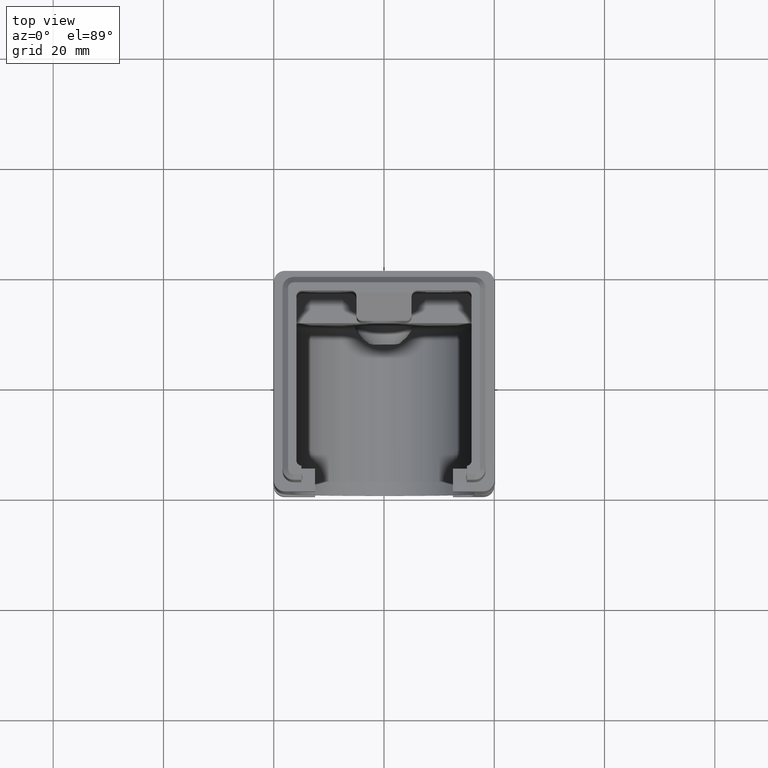
[diagram: clean part render]
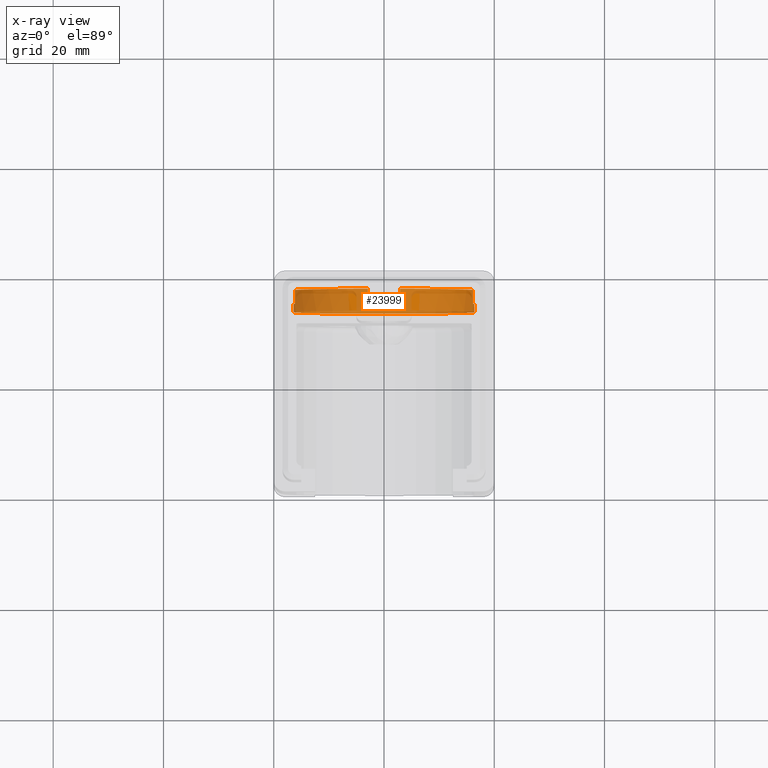
[diagram: x-ray — body ghosted, one internal face saturated and labeled with its STEP entity id]
A machine part, top view, then the same camera in x-ray: the body is ghosted and one INTERNAL B-rep face — a face not visible from any outside direction — is saturated and labeled: STEP entity #23999.
In plain terms, the highlighted cylindrical surface (bore or boss wall) has radius 16.4 mm, axis along (0, -1, -0).
Its self-contained STEP definition (entity closure, byte-faithful):
#12 = DIRECTION ( 'NONE',  ( 1.927470528863108900E-016, -1.000000000000000000, -7.953669373143949400E-031 ) ) ;
#92 = ORIENTED_EDGE ( 'NONE', *, *, #12497, .T. ) ;
#146 = CARTESIAN_POINT ( 'NONE',  ( 2.928571428571430600, 14.50000000000000500, -39.13640199634835400 ) ) ;
#282 = VERTEX_POINT ( 'NONE', #12118 ) ;
#476 = VECTOR ( 'NONE', #20689, 1000.000000000000000 ) ;
#581 = VERTEX_POINT ( 'NONE', #4730 ) ;
#643 = VECTOR ( 'NONE', #13404, 1000.000000000000000 ) ;
#796 = CARTESIAN_POINT ( 'NONE',  ( -2.928571428571439500, 66.38620484583756800, -39.13640199634835400 ) ) ;
#846 = CIRCLE ( 'NONE', #7372, 16.39999999999999900 ) ;
#871 = ORIENTED_EDGE ( 'NONE', *, *, #15768, .T. ) ;
#1350 = ORIENTED_EDGE ( 'NONE', *, *, #7459, .T. ) ;
#1381 = VECTOR ( 'NONE', #8305, 1000.000000000000000 ) ;
#1472 = DIRECTION ( 'NONE',  ( 1.000000000000000000, 2.115516434118057700E-016, 0.0000000000000000000 ) ) ;
#1579 = DIRECTION ( 'NONE',  ( 1.927470528863108900E-016, -1.000000000000000000, -7.953669373143949400E-031 ) ) ;
#1643 = VECTOR ( 'NONE', #1746, 1000.000000000000000 ) ;
#1746 = DIRECTION ( 'NONE',  ( 1.927470528863108900E-016, -1.000000000000000000, -7.953669373143949400E-031 ) ) ;
#1852 = AXIS2_PLACEMENT_3D ( 'NONE', #13918, #1579, #3391 ) ;
#1991 = CIRCLE ( 'NONE', #19603, 16.39999999999999900 ) ;
#2073 = VERTEX_POINT ( 'NONE', #20254 ) ;
#2307 = CARTESIAN_POINT ( 'NONE',  ( -2.928571428571440800, 66.38620484583751100, -6.863598003651646600 ) ) ;
#2364 = VECTOR ( 'NONE', #21792, 1000.000000000000000 ) ;
#2815 = VECTOR ( 'NONE', #3255, 1000.000000000000000 ) ;
#2904 = CIRCLE ( 'NONE', #22629, 16.39999999999999900 ) ;
#3255 = DIRECTION ( 'NONE',  ( -1.927470528863108900E-016, 1.000000000000000000, 7.953669373143949400E-031 ) ) ;
#3391 = DIRECTION ( 'NONE',  ( 1.000000000000000000, 2.115516434118057700E-016, 0.0000000000000000000 ) ) ;
#3498 = CARTESIAN_POINT ( 'NONE',  ( -2.928571428571430600, 14.50000000000000500, -39.13640199634835400 ) ) ;
#3570 = CARTESIAN_POINT ( 'NONE',  ( -16.13640199634833600, 16.99999999999999600, -20.07142857142858400 ) ) ;
#3629 = CARTESIAN_POINT ( 'NONE',  ( 2.928571428571421300, 66.38620484583756800, -39.13640199634838300 ) ) ;
#4162 = DIRECTION ( 'NONE',  ( 1.000000000000000000, 2.115516434118057700E-016, 1.692413147294446200E-015 ) ) ;
#4230 = VERTEX_POINT ( 'NONE', #24610 ) ;
#4231 = DIRECTION ( 'NONE',  ( 1.927470528863108900E-016, -1.000000000000000000, -7.953669373143949400E-031 ) ) ;
#4367 = ORIENTED_EDGE ( 'NONE', *, *, #19091, .T. ) ;
#4730 = CARTESIAN_POINT ( 'NONE',  ( 16.13640199634835400, 14.50000000000000900, -25.92857142857143400 ) ) ;
#5175 = CARTESIAN_POINT ( 'NONE',  ( -16.13640199634835400, 14.50000000000000200, -25.92857142857144800 ) ) ;
#5572 = EDGE_CURVE ( 'NONE', #12879, #12074, #15743, .T. ) ;
#5907 = ORIENTED_EDGE ( 'NONE', *, *, #26555, .T. ) ;
#5983 = LINE ( 'NONE', #12040, #476 ) ;
#6037 = CARTESIAN_POINT ( 'NONE',  ( -7.561964012169731500E-016, 17.00000000000000000, -23.00000000000000000 ) ) ;
#6071 = AXIS2_PLACEMENT_3D ( 'NONE', #11830, #26359, #1472 ) ;
#6286 = DIRECTION ( 'NONE',  ( 1.000000000000000000, 2.115516434118057200E-016, 0.0000000000000000000 ) ) ;
#6304 = ORIENTED_EDGE ( 'NONE', *, *, #26060, .T. ) ;
#6472 = VERTEX_POINT ( 'NONE', #3498 ) ;
#6612 = ORIENTED_EDGE ( 'NONE', *, *, #16990, .F. ) ;
#6631 = VERTEX_POINT ( 'NONE', #146 ) ;
#6874 = EDGE_LOOP ( 'NONE', ( #14440, #12453, #13443, #21254, #6612, #4367, #1350, #92, #7297, #26083, #13398, #7615, #19510, #871, #23049, #5907 ) ) ;
#7164 = CARTESIAN_POINT ( 'NONE',  ( -16.13640199634835100, 66.38620484583751100, -20.07142857142858400 ) ) ;
#7280 = AXIS2_PLACEMENT_3D ( 'NONE', #18523, #14457, #6286 ) ;
#7297 = ORIENTED_EDGE ( 'NONE', *, *, #15586, .F. ) ;
#7372 = AXIS2_PLACEMENT_3D ( 'NONE', #19540, #25834, #9198 ) ;
#7459 = EDGE_CURVE ( 'NONE', #13209, #12088, #2904, .T. ) ;
#7547 = VECTOR ( 'NONE', #12, 1000.000000000000000 ) ;
#7615 = ORIENTED_EDGE ( 'NONE', *, *, #11220, .T. ) ;
#8081 = CARTESIAN_POINT ( 'NONE',  ( -2.928571428571429300, 17.00000000000000000, -39.13640199634835400 ) ) ;
#8113 = CARTESIAN_POINT ( 'NONE',  ( 2.928571428571428800, 14.50000000000000500, -6.863598003651664400 ) ) ;
#8305 = DIRECTION ( 'NONE',  ( 1.927470528863108900E-016, -1.000000000000000000, -7.953669373143949400E-031 ) ) ;
#8437 = CARTESIAN_POINT ( 'NONE',  ( -2.928571428571430600, 17.00000000000000000, -6.863598003651650200 ) ) ;
#9062 = DIRECTION ( 'NONE',  ( 1.927470528863108900E-016, -1.000000000000000000, -7.953669373143949400E-031 ) ) ;
#9198 = DIRECTION ( 'NONE',  ( 1.000000000000000000, 2.115516434118057700E-016, 0.0000000000000000000 ) ) ;
#9270 = EDGE_CURVE ( 'NONE', #6472, #12879, #20377, .T. ) ;
#9344 = FACE_OUTER_BOUND ( 'NONE', #16865, .T. ) ;
#9701 = EDGE_CURVE ( 'NONE', #282, #26253, #846, .T. ) ;
#9827 = LINE ( 'NONE', #7164, #2364 ) ;
#10160 = DIRECTION ( 'NONE',  ( 1.927470528863108900E-016, -1.000000000000000000, -7.953669373143949400E-031 ) ) ;
#10267 = DIRECTION ( 'NONE',  ( 1.000000000000000000, 2.115516434118057700E-016, 0.0000000000000000000 ) ) ;
#10795 = CARTESIAN_POINT ( 'NONE',  ( 16.13640199634836100, 17.00000000000000400, -20.07142857142856600 ) ) ;
#11098 = AXIS2_PLACEMENT_3D ( 'NONE', #6037, #12209, #14403 ) ;
#11191 = CARTESIAN_POINT ( 'NONE',  ( -2.928571428571430200, 14.50000000000000500, -6.863598003651650200 ) ) ;
#11220 = EDGE_CURVE ( 'NONE', #20547, #14409, #5983, .T. ) ;
#11226 = CARTESIAN_POINT ( 'NONE',  ( -16.13640199634834000, 14.49999999999999500, -20.07142857142857300 ) ) ;
#11543 = CARTESIAN_POINT ( 'NONE',  ( 2.928571428571420800, 66.38620484583751100, -6.863598003651660800 ) ) ;
#11830 = CARTESIAN_POINT ( 'NONE',  ( -7.561964012169731500E-016, 17.00000000000000000, -23.00000000000000000 ) ) ;
#11890 = CIRCLE ( 'NONE', #15892, 16.39999999999999900 ) ;
#11913 = LINE ( 'NONE', #11543, #2815 ) ;
#12040 = CARTESIAN_POINT ( 'NONE',  ( 16.13640199634835800, 66.38620484583751100, -20.07142857142856600 ) ) ;
#12074 = VERTEX_POINT ( 'NONE', #25268 ) ;
#12088 = VERTEX_POINT ( 'NONE', #8437 ) ;
#12118 = CARTESIAN_POINT ( 'NONE',  ( 16.13640199634835100, 17.00000000000001800, -25.92857142857143400 ) ) ;
#12209 = DIRECTION ( 'NONE',  ( -1.927470528863108900E-016, 1.000000000000000000, 7.953669373143949400E-031 ) ) ;
#12288 = EDGE_CURVE ( 'NONE', #581, #14409, #19943, .T. ) ;
#12384 = VERTEX_POINT ( 'NONE', #8113 ) ;
#12453 = ORIENTED_EDGE ( 'NONE', *, *, #9270, .T. ) ;
#12497 = EDGE_CURVE ( 'NONE', #12088, #14014, #15681, .T. ) ;
#12609 = DIRECTION ( 'NONE',  ( 1.000000000000000000, 0.0000000000000000000, 0.0000000000000000000 ) ) ;
#12625 = DIRECTION ( 'NONE',  ( -1.927470528863108900E-016, 1.000000000000000000, 7.953669373143949400E-031 ) ) ;
#12879 = VERTEX_POINT ( 'NONE', #8081 ) ;
#12913 = VECTOR ( 'NONE', #17719, 1000.000000000000000 ) ;
#13209 = VERTEX_POINT ( 'NONE', #3570 ) ;
#13276 = AXIS2_PLACEMENT_3D ( 'NONE', #20876, #4231, #12609 ) ;
#13398 = ORIENTED_EDGE ( 'NONE', *, *, #18280, .T. ) ;
#13404 = DIRECTION ( 'NONE',  ( -1.927470528863108900E-016, 1.000000000000000000, 7.953669373143949400E-031 ) ) ;
#13443 = ORIENTED_EDGE ( 'NONE', *, *, #5572, .T. ) ;
#13918 = CARTESIAN_POINT ( 'NONE',  ( -2.739333746767636800E-016, 14.50000000000000500, -23.00000000000000000 ) ) ;
#14014 = VERTEX_POINT ( 'NONE', #11191 ) ;
#14313 = LINE ( 'NONE', #3629, #1643 ) ;
#14403 = DIRECTION ( 'NONE',  ( 1.000000000000000000, 2.115516434118057700E-016, 0.0000000000000000000 ) ) ;
#14409 = VERTEX_POINT ( 'NONE', #22047 ) ;
#14440 = ORIENTED_EDGE ( 'NONE', *, *, #14472, .F. ) ;
#14457 = DIRECTION ( 'NONE',  ( 1.927470528863108900E-016, -1.000000000000000000, -7.953669373143949400E-031 ) ) ;
#14472 = EDGE_CURVE ( 'NONE', #6472, #6631, #25457, .T. ) ;
#15053 = DIRECTION ( 'NONE',  ( 1.000000000000000000, 2.115516434118057700E-016, 0.0000000000000000000 ) ) ;
#15092 = EDGE_CURVE ( 'NONE', #12074, #16873, #18593, .T. ) ;
#15586 = EDGE_CURVE ( 'NONE', #12384, #14014, #1991, .T. ) ;
#15681 = LINE ( 'NONE', #2307, #1381 ) ;
#15743 = CIRCLE ( 'NONE', #11098, 16.39999999999999900 ) ;
#15768 = EDGE_CURVE ( 'NONE', #581, #282, #17898, .T. ) ;
#15892 = AXIS2_PLACEMENT_3D ( 'NONE', #19401, #9062, #15053 ) ;
#16319 = CARTESIAN_POINT ( 'NONE',  ( -2.739333746767636800E-016, 14.50000000000000500, -23.00000000000000000 ) ) ;
#16376 = DIRECTION ( 'NONE',  ( 1.000000000000000000, 2.115516434118057200E-016, 0.0000000000000000000 ) ) ;
#16548 = CARTESIAN_POINT ( 'NONE',  ( -16.13640199634836100, 66.38620484583751100, -25.92857142857144800 ) ) ;
#16865 = EDGE_LOOP ( 'NONE', ( #6304 ) ) ;
#16873 = VERTEX_POINT ( 'NONE', #5175 ) ;
#16990 = EDGE_CURVE ( 'NONE', #19382, #16873, #22601, .T. ) ;
#17719 = DIRECTION ( 'NONE',  ( -1.927470528863108900E-016, 1.000000000000000000, 7.953669373143949400E-031 ) ) ;
#17898 = LINE ( 'NONE', #18985, #643 ) ;
#18280 = EDGE_CURVE ( 'NONE', #2073, #20547, #19607, .T. ) ;
#18523 = CARTESIAN_POINT ( 'NONE',  ( -2.739333746767636800E-016, 14.50000000000000500, -23.00000000000000000 ) ) ;
#18593 = LINE ( 'NONE', #16548, #7547 ) ;
#18985 = CARTESIAN_POINT ( 'NONE',  ( 16.13640199634834400, 66.38620484583751100, -25.92857142857143400 ) ) ;
#19058 = AXIS2_PLACEMENT_3D ( 'NONE', #22665, #22478, #16376 ) ;
#19091 = EDGE_CURVE ( 'NONE', #19382, #13209, #9827, .T. ) ;
#19097 = CYLINDRICAL_SURFACE ( 'NONE', #13276, 16.39999999999999900 ) ;
#19382 = VERTEX_POINT ( 'NONE', #11226 ) ;
#19401 = CARTESIAN_POINT ( 'NONE',  ( 1.542444124736494100E-017, 13.00000000000000500, -23.00000000000000000 ) ) ;
#19510 = ORIENTED_EDGE ( 'NONE', *, *, #12288, .F. ) ;
#19540 = CARTESIAN_POINT ( 'NONE',  ( -7.561964012169731500E-016, 17.00000000000000000, -23.00000000000000000 ) ) ;
#19603 = AXIS2_PLACEMENT_3D ( 'NONE', #16319, #10160, #10267 ) ;
#19607 = CIRCLE ( 'NONE', #6071, 16.39999999999999900 ) ;
#19943 = CIRCLE ( 'NONE', #19058, 16.40000000000000200 ) ;
#20254 = CARTESIAN_POINT ( 'NONE',  ( 2.928571428571430200, 17.00000000000000000, -6.863598003651664400 ) ) ;
#20377 = LINE ( 'NONE', #796, #12913 ) ;
#20547 = VERTEX_POINT ( 'NONE', #10795 ) ;
#20689 = DIRECTION ( 'NONE',  ( 1.927470528863108900E-016, -1.000000000000000000, -7.953669373143949400E-031 ) ) ;
#20876 = CARTESIAN_POINT ( 'NONE',  ( -1.027578625641836100E-014, 66.38620484583751100, -23.00000000000000000 ) ) ;
#21082 = FACE_OUTER_BOUND ( 'NONE', #6874, .T. ) ;
#21254 = ORIENTED_EDGE ( 'NONE', *, *, #15092, .T. ) ;
#21792 = DIRECTION ( 'NONE',  ( -1.927470528863108900E-016, 1.000000000000000000, 7.953669373143949400E-031 ) ) ;
#22047 = CARTESIAN_POINT ( 'NONE',  ( 16.13640199634836500, 14.50000000000000200, -20.07142857142856600 ) ) ;
#22478 = DIRECTION ( 'NONE',  ( 1.927470528863108900E-016, -1.000000000000000000, -7.953669373143949400E-031 ) ) ;
#22601 = CIRCLE ( 'NONE', #7280, 16.40000000000000200 ) ;
#22629 = AXIS2_PLACEMENT_3D ( 'NONE', #22923, #12625, #4162 ) ;
#22665 = CARTESIAN_POINT ( 'NONE',  ( -2.739333746767636800E-016, 14.50000000000000500, -23.00000000000000000 ) ) ;
#22923 = CARTESIAN_POINT ( 'NONE',  ( -7.561964012169731500E-016, 17.00000000000000000, -23.00000000000000000 ) ) ;
#23049 = ORIENTED_EDGE ( 'NONE', *, *, #9701, .T. ) ;
#23999 = ADVANCED_FACE ( 'NONE', ( #9344, #21082 ), #19097, .F. ) ;
#24610 = CARTESIAN_POINT ( 'NONE',  ( 16.39999999999999900, 13.00000000000000900, -23.00000000000000000 ) ) ;
#24841 = EDGE_CURVE ( 'NONE', #12384, #2073, #11913, .T. ) ;
#25268 = CARTESIAN_POINT ( 'NONE',  ( -16.13640199634835100, 17.00000000000001100, -25.92857142857144800 ) ) ;
#25457 = CIRCLE ( 'NONE', #1852, 16.39999999999999900 ) ;
#25834 = DIRECTION ( 'NONE',  ( -1.927470528863108900E-016, 1.000000000000000000, 7.953669373143949400E-031 ) ) ;
#26060 = EDGE_CURVE ( 'NONE', #4230, #4230, #11890, .T. ) ;
#26083 = ORIENTED_EDGE ( 'NONE', *, *, #24841, .T. ) ;
#26253 = VERTEX_POINT ( 'NONE', #26489 ) ;
#26359 = DIRECTION ( 'NONE',  ( -1.927470528863108900E-016, 1.000000000000000000, 7.953669373143949400E-031 ) ) ;
#26489 = CARTESIAN_POINT ( 'NONE',  ( 2.928571428571430200, 17.00000000000000000, -39.13640199634835400 ) ) ;
#26555 = EDGE_CURVE ( 'NONE', #26253, #6631, #14313, .T. ) ;